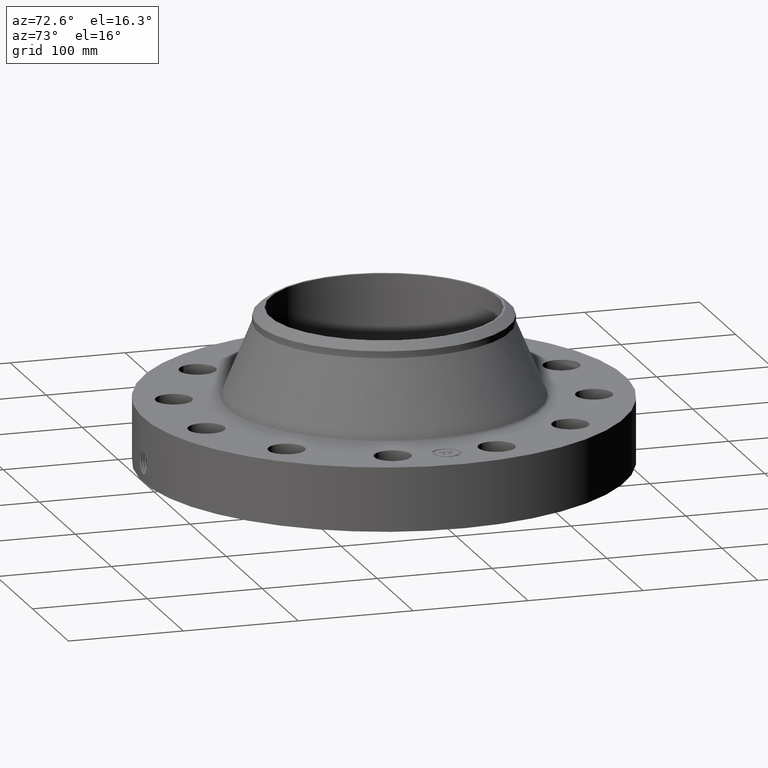
[diagram: clean part render]
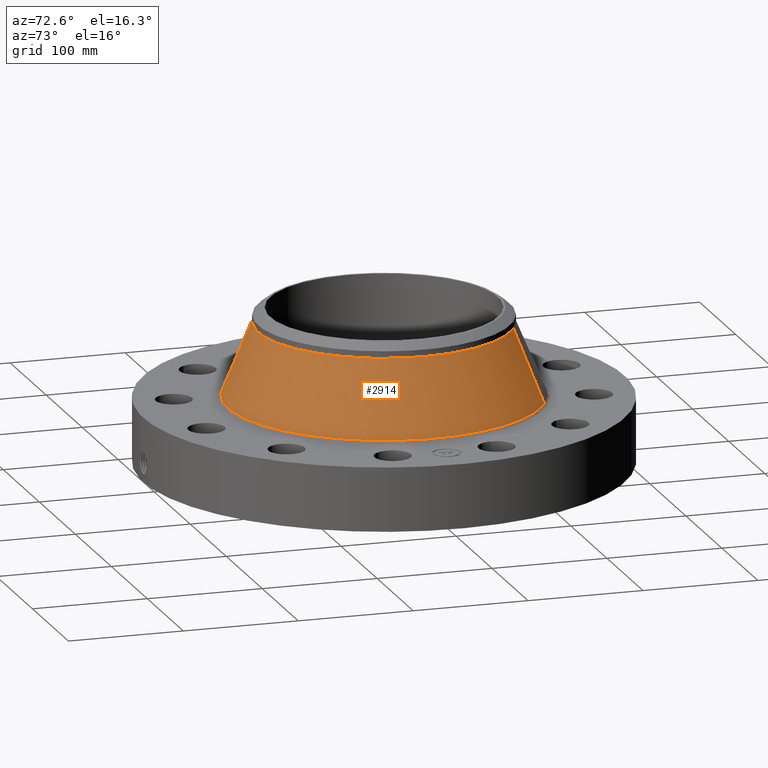
[diagram: same view with one face highlighted and labeled with its STEP entity id]
A machine part, auxiliary view. The second image highlights one B-rep face of the part: STEP entity #2914.
In plain terms, the highlighted conical surface has half-angle 22.408 deg.
Its self-contained STEP definition (entity closure, byte-faithful):
#2153=AXIS2_PLACEMENT_3D('Circle Axis2P3D',#2151,#2152,$) ;
#2887=AXIS2_PLACEMENT_3D('Cone Axis2P3D',#2884,#2885,#2886) ;
#2898=AXIS2_PLACEMENT_3D('Circle Axis2P3D',#2896,#2897,$) ;
#2148=CARTESIAN_POINT('Vertex',(2.56223312122,4.69013626856,2.51425624679)) ;
#2151=CARTESIAN_POINT('Axis2P3D Location',(0.,0.,2.51425624679)) ;
#2155=CARTESIAN_POINT('Vertex',(-2.56223312122,-4.69013626856,2.51425624679)) ;
#2884=CARTESIAN_POINT('Axis2P3D Location',(0.,0.,5.01074590086)) ;
#2889=CARTESIAN_POINT('Line Origine',(2.31547716015,4.23845251156,3.76250107383)) ;
#2893=CARTESIAN_POINT('Vertex',(2.06872119909,3.78676875457,5.01074590086)) ;
#2896=CARTESIAN_POINT('Axis2P3D Location',(0.,0.,5.01074590086)) ;
#2900=CARTESIAN_POINT('Vertex',(-2.06872119909,-3.78676875457,5.01074590086)) ;
#2903=CARTESIAN_POINT('Line Origine',(-2.31547716015,-4.23845251156,3.76250107383)) ;
#2152=DIRECTION('Axis2P3D Direction',(0.,0.,-0.0393700787402)) ;
#2885=DIRECTION('Axis2P3D Direction',(0.,0.,-0.0393700787402)) ;
#2886=DIRECTION('Axis2P3D XDirection',(-0.0188750212049,-0.0345504945626,0.)) ;
#2890=DIRECTION('Vector Direction',(0.00719511926622,0.0131705774731,-0.0363973796828)) ;
#2897=DIRECTION('Axis2P3D Direction',(0.,0.,-0.0393700787402)) ;
#2904=DIRECTION('Vector Direction',(-0.00719511926622,-0.0131705774731,-0.0363973796828)) ;
#2891=VECTOR('Line Direction',#2890,0.0393700787402) ;
#2905=VECTOR('Line Direction',#2904,0.0393700787402) ;
#2909=ORIENTED_EDGE('',*,*,#2157,.F.) ;
#2910=ORIENTED_EDGE('',*,*,#2895,.T.) ;
#2911=ORIENTED_EDGE('',*,*,#2902,.T.) ;
#2912=ORIENTED_EDGE('',*,*,#2907,.F.) ;
#2914=ADVANCED_FACE('PartBody',(#2913),#2888,.T.) ;
#2154=CIRCLE('generated circle',#2153,5.34438179635) ;
#2899=CIRCLE('generated circle',#2898,4.31500000002) ;
#2888=CONICAL_SURFACE('Cone',#2887,4.31500000002,0.391091734485) ;
#2157=EDGE_CURVE('',#2149,#2156,#2154,.T.) ;
#2895=EDGE_CURVE('',#2149,#2894,#2892,.F.) ;
#2902=EDGE_CURVE('',#2894,#2901,#2899,.T.) ;
#2907=EDGE_CURVE('',#2156,#2901,#2906,.F.) ;
#2908=EDGE_LOOP('',(#2909,#2910,#2911,#2912)) ;
#2913=FACE_OUTER_BOUND('',#2908,.T.) ;
#2892=LINE('Line',#2889,#2891) ;
#2906=LINE('Line',#2903,#2905) ;
#2149=VERTEX_POINT('',#2148) ;
#2156=VERTEX_POINT('',#2155) ;
#2894=VERTEX_POINT('',#2893) ;
#2901=VERTEX_POINT('',#2900) ;